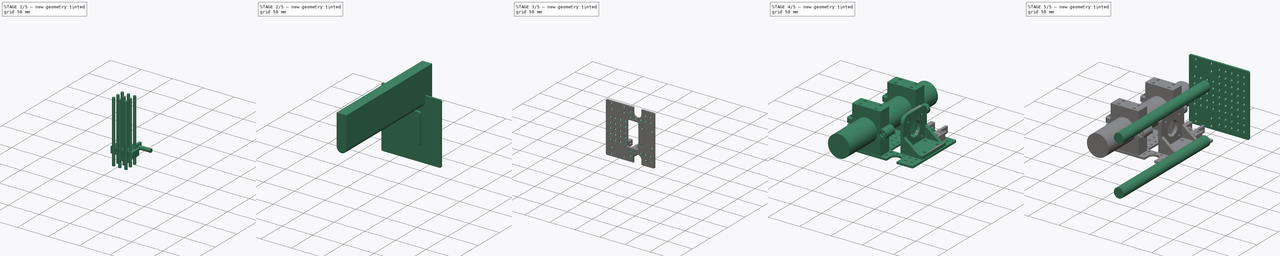
[diagram: build sequence overview — one tinted view per stage of 5, left to right]
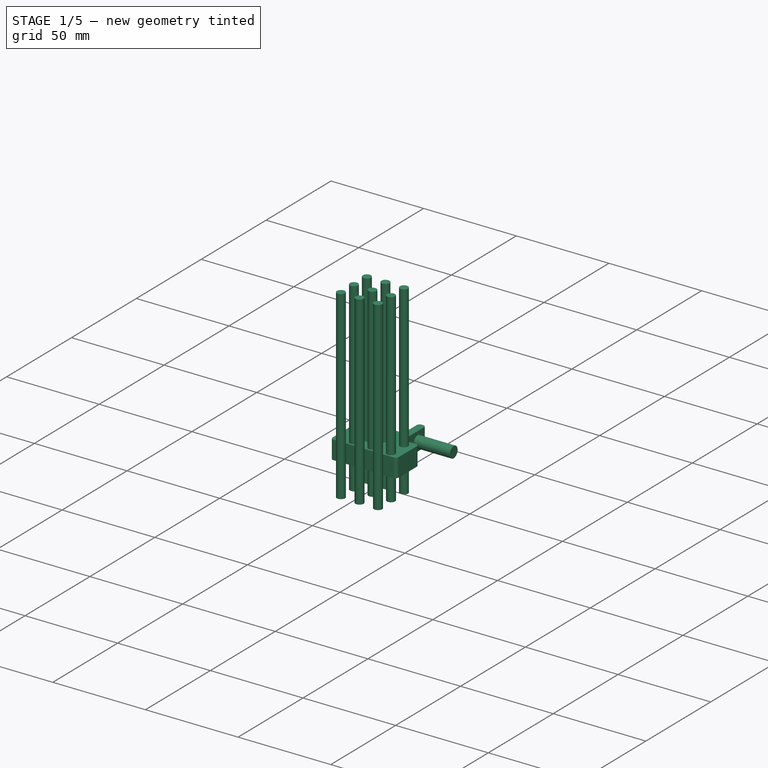
[diagram: stage 1 of 5 — iso view after this stage's code; geometry added in this stage tinted green]
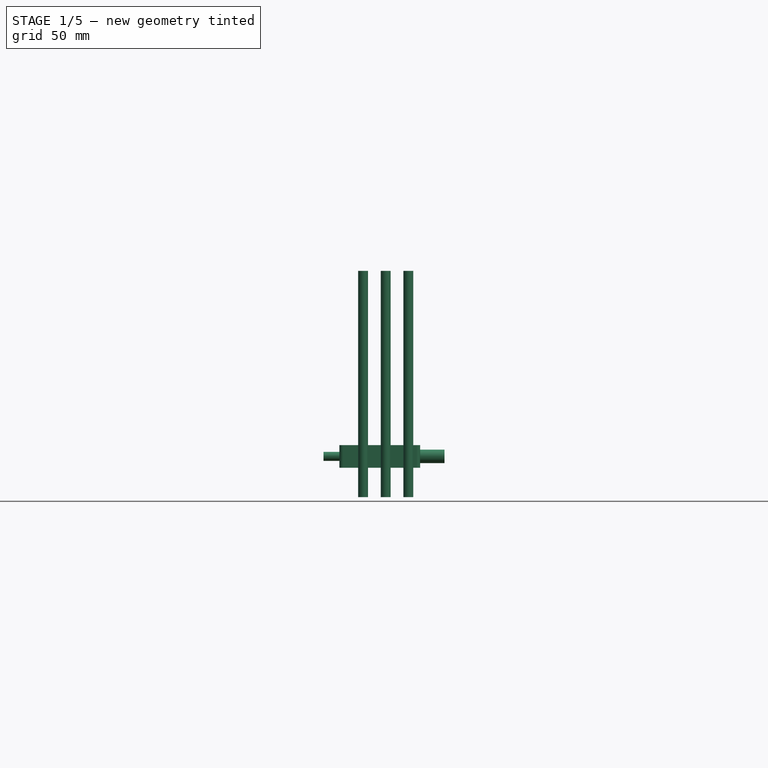
[diagram: stage 1 of 5 — front view after this stage's code; geometry added in this stage tinted green]
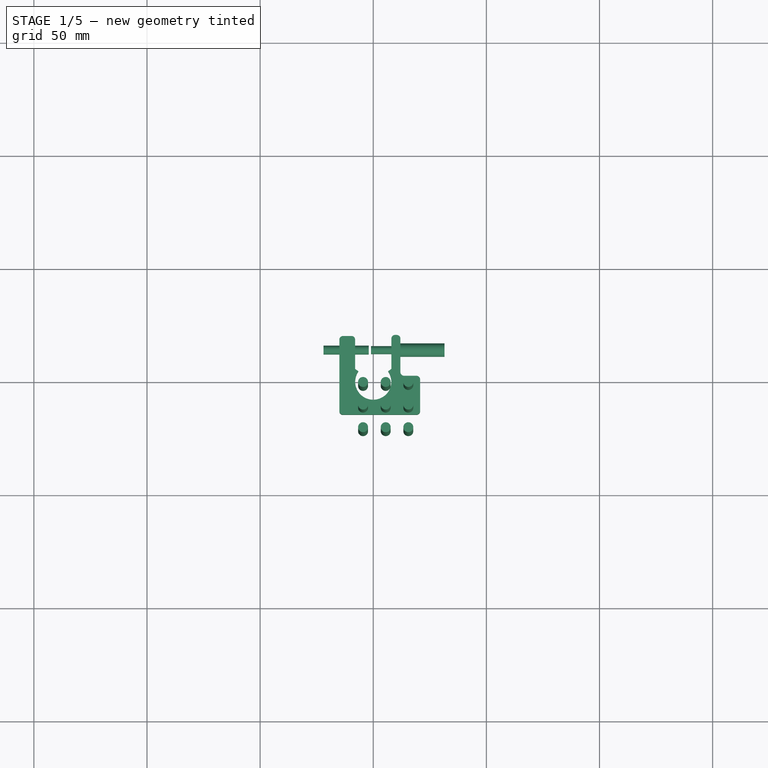
[diagram: stage 1 of 5 — top view after this stage's code; geometry added in this stage tinted green]
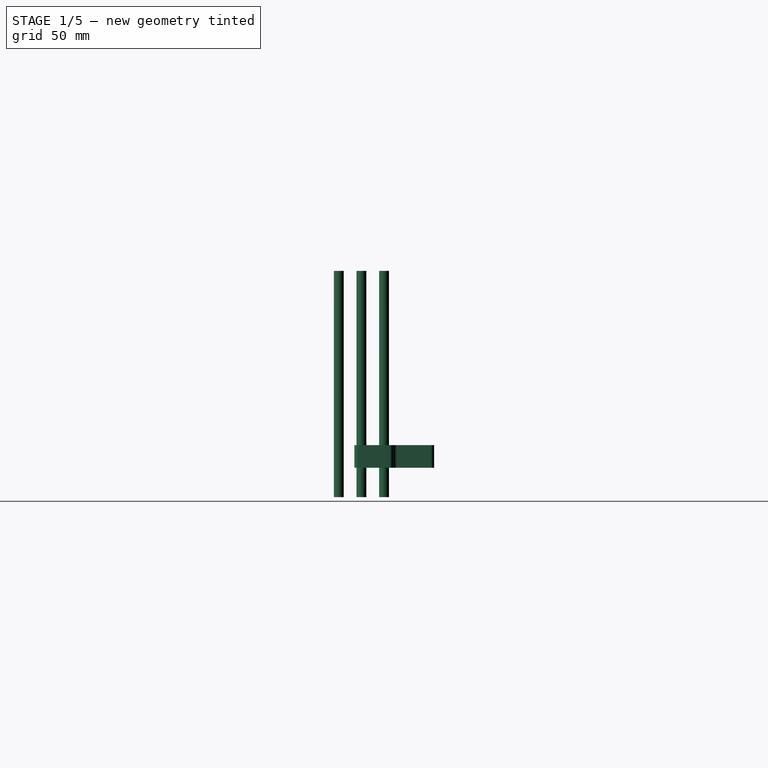
[diagram: stage 1 of 5 — right view after this stage's code; geometry added in this stage tinted green]
FCSTD DOCUMENT  (FreeCAD 0.19R)
Label: belt_connector
License: All rights reserved
LicenseURL: http://en.wikipedia.org/wiki/All_rights_reserved
objects: Part::Cylinder×16, Part::FeaturePython×8, Part::Cut×8, Part::MultiFuse×6, Part::Feature×5, App::Part×5, Part::Box×4, Part::Compound×3, Sketcher::SketchObject×3, Part::Fillet×3, Part::Extrusion×2, Spreadsheet::Sheet×1, Part::Mirroring×1, PartDesign::Pad×1, PartDesign::Body×1
note: 54 computed .brp shape members not serialized (recipe doc carries the construction recipe); baked Part::Feature solids carry a one-line shape summary decoded from their .brp

FEATURE [Sketcher::SketchObject] Sketch002
  FullyConstrained = false
  MapMode = 5
  Support = -> [XY_Plane005]
  expr: Constraints[10] = <<p>>.shaft_16mm_r
  sketch-geometry (18):
    g0: LineSegment StartX=19.0911 StartY=-14.6 StartZ=0 EndX=-13.3722 EndY=-14.6 EndZ=0
    g1: LineSegment StartX=20.7189 StartY=-12.9722 StartZ=0 EndX=20.7189 EndY=0.972183 EndZ=0
    g2: LineSegment StartX=19.0911 StartY=2.6 StartZ=0 EndX=13.6278 EndY=2.6 EndZ=0
    g3: LineSegment StartX=12 StartY=4.22782 StartZ=0 EndX=12 EndY=19.0179 EndZ=0
    g4: LineSegment StartX=10.3722 StartY=20.6457 StartZ=0 EndX=9.62782 EndY=20.6457 EndZ=0
    g5: LineSegment StartX=8 StartY=19.0179 StartZ=0 EndX=8 EndY=-3.6e-15 EndZ=0
    g6: LineSegment StartX=-8 StartY=-2.6e-15 StartZ=0 EndX=-8 EndY=18.5447 EndZ=0
    g7: LineSegment StartX=-9.62782 StartY=20.1725 StartZ=0 EndX=-13.3722 EndY=20.1725 EndZ=0
    g8: LineSegment StartX=-15 StartY=18.5447 StartZ=0 EndX=-15 EndY=-12.9722 EndZ=0
    g9: ArcOfCircle CenterX=0 CenterY=0 CenterZ=0 NormalX=0 NormalY=0 NormalZ=1 AngleXU=0 Radius=8 StartAngle=3.14159 EndAngle=6.28319
    g10: ArcOfCircle CenterX=10.3722 CenterY=19.0179 CenterZ=0 NormalX=0 NormalY=0 NormalZ=1 AngleXU=0 Radius=1.62782 StartAngle=-9e-16 EndAngle=1.5708
    g11: ArcOfCircle CenterX=9.62782 CenterY=19.0179 CenterZ=0 NormalX=0 NormalY=0 NormalZ=1 AngleXU=0 Radius=1.62782 StartAngle=1.5708 EndAngle=3.14159
    g12: ArcOfCircle CenterX=-9.62782 CenterY=18.5447 CenterZ=0 NormalX=0 NormalY=0 NormalZ=1 AngleXU=0 Radius=1.62782 StartAngle=1.1e-15 EndAngle=1.5708
    g13: ArcOfCircle CenterX=-13.3722 CenterY=18.5447 CenterZ=0 NormalX=0 NormalY=0 NormalZ=1 AngleXU=0 Radius=1.62782 StartAngle=1.5708 EndAngle=3.14159
    g14: ArcOfCircle CenterX=-13.3722 CenterY=-12.9722 CenterZ=0 NormalX=0 NormalY=0 NormalZ=1 AngleXU=0 Radius=1.62782 StartAngle=3.14159 EndAngle=4.71239
    g15: ArcOfCircle CenterX=19.0911 CenterY=-12.9722 CenterZ=0 NormalX=0 NormalY=0 NormalZ=1 AngleXU=0 Radius=1.62782 StartAngle=4.71239 EndAngle=6.28319
    g16: ArcOfCircle CenterX=19.0911 CenterY=0.972183 CenterZ=0 NormalX=0 NormalY=0 NormalZ=1 AngleXU=0 Radius=1.62782 StartAngle=0 EndAngle=1.5708
    g17: ArcOfCircle CenterX=13.6278 CenterY=4.22782 CenterZ=0 NormalX=0 NormalY=0 NormalZ=1 AngleXU=0 Radius=1.62782 StartAngle=3.14159 EndAngle=4.71239
  constraints (40):
    c: Horizontal(g0)
    c: Vertical(g1)
    c: Horizontal(g2)
    c: Vertical(g3)
    c: Vertical(g5)
    c: Horizontal(g7)
    c: Vertical(g8)
    c: Horizontal(g4)
    c: Tangent(g9,g6) = 1.5708
    c: Tangent(g9,g5) = 1.5708
    c: Radius(g9) = 8
    c: Coincident(g-1,g9)
    c: Tangent(g4,g10) = -1.5708
    c: Tangent(g3,g10) = -1.5708
    c: Tangent(g5,g11) = -1.5708
    c: Tangent(g4,g11) = -1.5708
    c: Tangent(g6,g12) = -1.5708
    c: Tangent(g7,g12) = -1.5708
    c: Tangent(g7,g13) = -1.5708
    c: Tangent(g8,g13) = -1.5708
    c: Tangent(g8,g14) = -1.5708
    c: Tangent(g0,g14) = 1.5708
    c: Tangent(g0,g15) = 1.5708
    c: Tangent(g1,g15) = -1.5708
    c: Tangent(g2,g16) = -1.5708
    c: Tangent(g1,g16) = -1.5708
    c: Tangent(g2,g17) = 1.5708
    c: Tangent(g3,g17) = 1.5708
    c: Equal(g13,g12)
    c: Equal(g12,g11)
    c: Equal(g11,g10)
    c: Equal(g10,g17)
    c: Equal(g17,g16)
    c: Equal(g16,g15)
    c: Equal(g15,g14)
    c: DistanceX(g5,g3) = 4
    c: DistanceY(g0,g9) = 14.6
    c: DistanceY(g0,g2) = 17.2
    c: DistanceX(g8,g6) = 7
    c: Vertical(g6)
FEATURE [PartDesign::Pad] Pad
  Direction = (1,1,1)
  Length = 10
  Length2 = 100
  Profile = -> Sketch002
  Type = 0
  expr: Length = <<p>>.shaft_attachment_size
FEATURE [PartDesign::Body] Body  label="shaft attachment body"
  Group = -> [Sketch002,Pad]
  Origin = -> Origin005
  Tip = -> Pad
FEATURE [Part::Cylinder] Cylinder011010  label="general insert hole"
  Angle = 360
  AttacherType = Attacher::AttachEngine3D
  Height = 100
  Radius = 2.2
  expr: Radius = <<p>>.insert_hole_r
FEATURE [Part::FeaturePython] Array008  label="general insert hole array"  # Draft array (typed FeaturePython)
  Angle = 360
  ArrayType = 0
  Axis = (0,0,1)
  Base = -> Cylinder011010
  Center = (0,0,0)
  Count = 9
  ExpandArray = false
  Fuse = false
  IntervalAxis = (0,0,0)
  IntervalX = (10,0,0)
  IntervalY = (0,10,0)
  IntervalZ = (0,0,10)
  NumberCircles = 3
  NumberPolar = 5
  NumberX = 3
  NumberY = 3
  NumberZ = 1
  Placement = pos=(-4.5,-21.5,-13) rot=(0,0,1;0rad)
  PlacementList = 9 placements: [(0,0,0),(0,10,0),(0,20,0),(10,0,0),(10,10,0),(10,20,0),(20,0,0),(20,10,0),(20,20,0)]
  RadialDistance = 50
  ScaleList = (9) [(1,1,1),(1,1,1),(1,1,1),(1,1,1),(1,1,1),(1,1,1),(1,1,1),(1,1,1),(1,1,1)]
  Symmetry = 1
  TangentialDistance = 25
FEATURE [Part::Cylinder] Cylinder011011  label="insert hole"
  Angle = 360
  AttacherType = Attacher::AttachEngine3D
  Height = 20
  Placement = pos=(-22,14,5) rot=(0,1,0;1.5708rad)
  Radius = 2
  expr: .Placement.Base.z = <<p>>.shaft_attachment_size / 2
FEATURE [Part::Cylinder] Cylinder011012  label="bolt hole001"
  Angle = 360
  AttacherType = Attacher::AttachEngine3D
  Height = 20
  Placement = pos=(-1,14,5) rot=(0,1,0;1.5708rad)
  Radius = 1.8
  expr: Radius = <<p>>.bolt_hole_r
  expr: .Placement.Base.z = <<p>>.shaft_attachment_size / 2
FEATURE [Part::Cylinder] Cylinder011013  label="bolt head hole"
  Angle = 360
  AttacherType = Attacher::AttachEngine3D
  Height = 20
  Placement = pos=(11.5,14,5) rot=(0,1,0;1.5708rad)
  Radius = 3
  expr: .Placement.Base.z = <<p>>.shaft_attachment_size / 2
  expr: Radius = <<p>>.bolt_head_r
FEATURE [Part::Cylinder] Cylinder011014  label="Cylinder"
  Angle = 360
  AttacherType = Attacher::AttachEngine3D
  Height = 10
  Radius = 8
  expr: Height = <<p>>.shaft_attachment_size
  expr: Radius = <<p>>.shaft_16mm_r
FEATURE [Part::Cylinder] Cylinder011015
  Angle = 250
  AttacherType = Attacher::AttachEngine3D
  Height = 10
  Placement = pos=(0,0,0) rot=(0,0,1;2.53073rad)
  Radius = 11
  expr: Radius = <<p>>.shaft_16mm_r + 3mm
  expr: Height = <<p>>.shaft_attachment_size
FEATURE [Part::Cut] Cut023015009010
  Base = -> Cylinder011015
  Tool = -> Cylinder011014
FEATURE [Part::MultiFuse] Fusion005  label="shaft attachment fusion"
  Shapes = -> [Body,Cut023015009010]
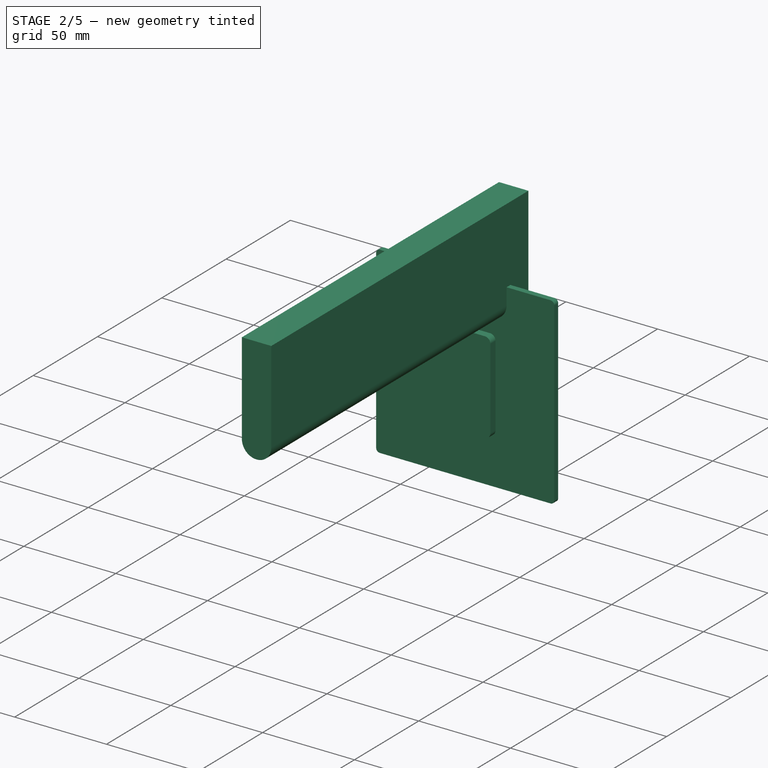
[diagram: stage 2 of 5 — iso view after this stage's code; geometry added in this stage tinted green]
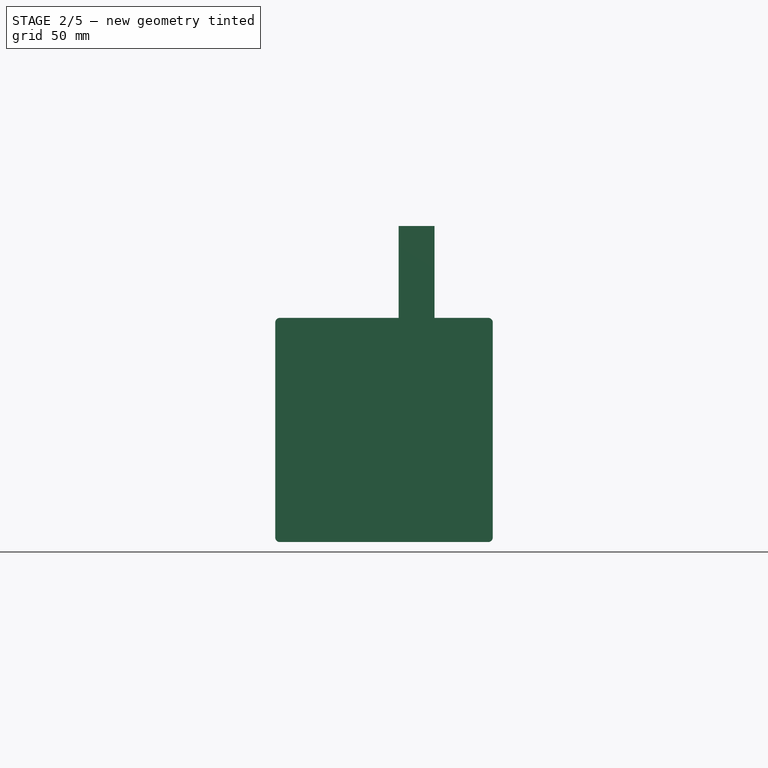
[diagram: stage 2 of 5 — front view after this stage's code; geometry added in this stage tinted green]
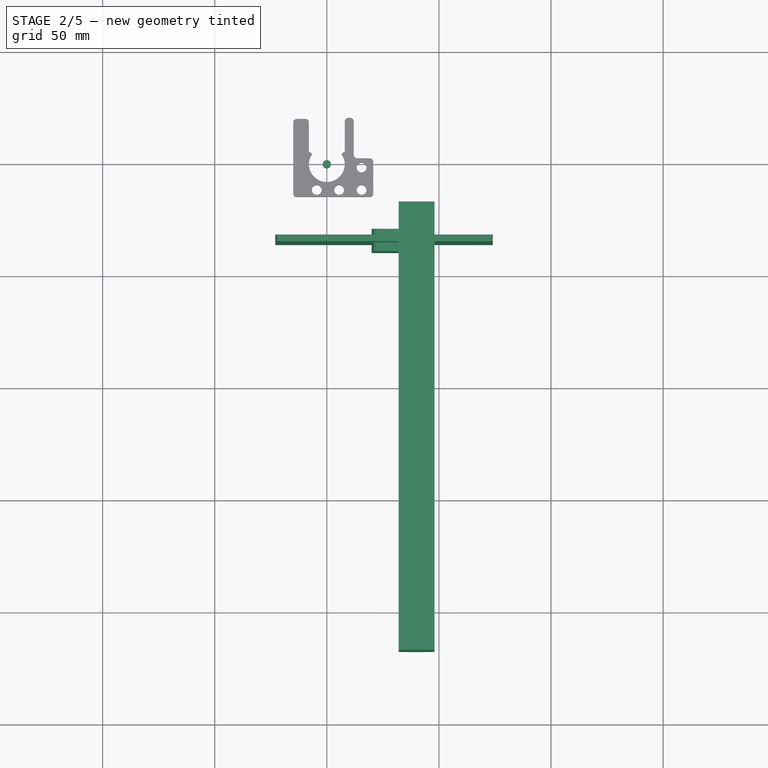
[diagram: stage 2 of 5 — top view after this stage's code; geometry added in this stage tinted green]
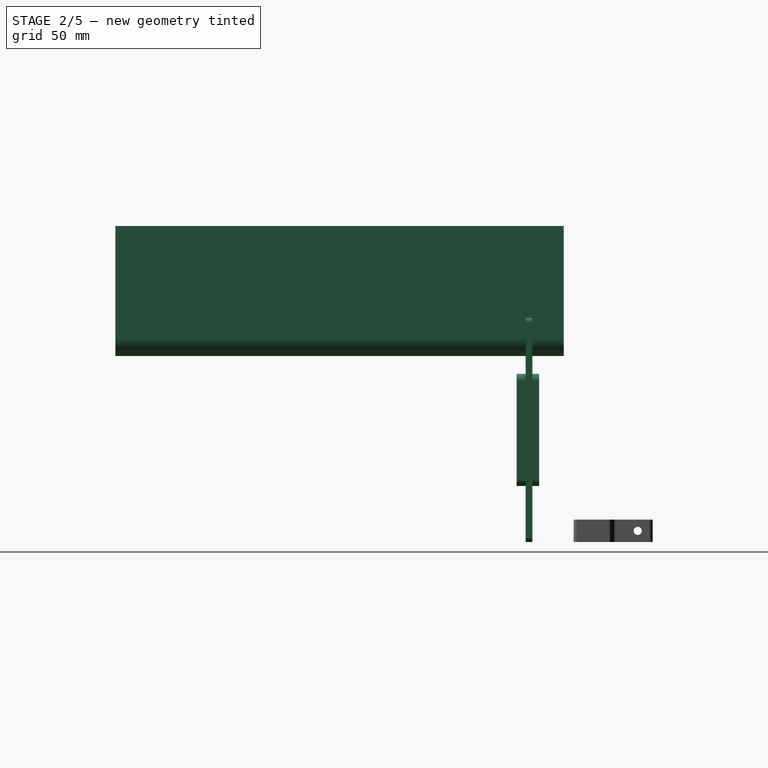
[diagram: stage 2 of 5 — right view after this stage's code; geometry added in this stage tinted green]
FEATURE [Part::Feature] Compound002  label="NEMA_17_with_connector_mockup"
  Placement = pos=(84,-6,50) rot=(0,-1,0;1.5708rad)
  shape: bbox 62 x 42.3 x 48.15 mm, 1151 faces, 10 solids (baked)
FEATURE [Spreadsheet::Sheet] Spreadsheet  label="p"
  cells = A1=stepper_shaft_space_size; B1(stepper_shaft_space_size)==25mm; A2=attachment_dist; B2(attachment_dist)==80mm; A3=attachment_size; B3(attachment_size)==20mm; A4=attachment_height; B4(attachment_height)==45mm; A5=bottom_axle_dist; B5(bottom_axle_dist)==47mm; A6=plate_height; B6(plate_height)==attachment_height + bottom_axle_dist + 5mm; A7=plate_length; B7(plate_length)==attachment_dist + attachment_size; A8=bolt_head_r; B8(bolt_head_r)==3mm; A9=bolt_hole_r; B9(bolt_hole_r)==1.8mm; A10=insert_hole_interval_x; B10(insert_hole_interval_x)==25mm; A11=insert_hole_interval_y; B11(insert_hole_interval_y)==11mm; A12=shaft_16mm_r; B12(shaft_16mm_r)==8mm; A13=insert_hole_r; B13(insert_hole_r)==2.2mm; A14=shaft_attachment_size; B14(shaft_attachment_size)==10mm
FEATURE [Part::Box] Box  label="side plate"
  AttacherType = Attacher::AttachEngine3D
  Height = 100
  Length = 97
  Placement = pos=(-23,-36,0) rot=(0,0,1;0rad)
  Width = 3
  expr: Length = <<p>>.plate_height
  expr: Height = <<p>>.plate_length
FEATURE [Part::Cylinder] Cylinder  label="shaft 16mm"
  Angle = 360
  AttacherType = Attacher::AttachEngine3D
  Height = 200
  Placement = pos=(0,0,0) rot=(1,0,0;1.5708rad)
  Radius = 8
  expr: Radius = <<p>>.shaft_16mm_r
FEATURE [Part::Feature] Cut023015009006  label="stepper mount"
  Placement = pos=(38,-6,50) rot=(0,1,0;1.5708rad)
  shape: bbox 35 x 53 x 53 mm, 32 faces (baked)
  expr: .Placement.Base.z = <<p>>.attachment_dist / 2 + <<p>>.attachment_size / 2
FEATURE [Part::Cylinder] Cylinder011003  label="stepper mount hole"
  Angle = 360
  AttacherType = Attacher::AttachEngine3D
  Height = 10
  Radius = 1.8
  expr: Radius = <<p>>.bolt_hole_r
FEATURE [Part::Fillet] Fillet  label="side plate fillet"
  Base = -> Box
  Edges = 4 edges r=2: [Edge2,Edge4,Edge6,Edge8]
FEATURE [Part::Box] Box002  label="belt hole"
  AttacherType = Attacher::AttachEngine3D
  Height = 50
  Length = 22
  Placement = pos=(20,-40,25) rot=(0,0,1;0rad)
  Width = 10
  expr: .Placement.Base.z = (<<p>>.plate_length - Height) / 2
FEATURE [Part::Fillet] Fillet002  label="belt hole fillet"
  Base = -> Box002
  Edges = 4 edges r=3: [Edge2,Edge4,Edge6,Edge8]
FEATURE [Part::Box] Box003  label="shaft extension cube"
  AttacherType = Attacher::AttachEngine3D
  Height = 50
  Length = 16
  Placement = pos=(-8,-200,-50) rot=(0,0,1;0rad)
  Width = 200
  expr: .Placement.Base.z = -Height
  expr: .Placement.Base.x = -Length / 2
  expr: Length = <<p>>.shaft_16mm_r * 2
  expr: .Placement.Base.y = -Width
  expr: Width = <<shaft 16mm>>.Height
FEATURE [Part::MultiFuse] Fusion002  label="shaft 16mm hole"
  Placement = pos=(40,-19,9) rot=(0,0,1;0rad)
  Shapes = -> [Cylinder,Box003]
FEATURE [Part::Mirroring] Part__Mirroring  label="shaft 16mm hole (Mirror #1)"
  Base = (0,0,50)
  Normal = (0,0,1)
  Source = -> Fusion002
FEATURE [Part::MultiFuse] Fusion004  label="shaft attachment holde fusion"
  Shapes = -> [Cylinder011011,Cylinder011012,Cylinder011013,Array008]
FEATURE [Part::Cut] Cut023015009009  label="shaft attachment  cut"
  Base = -> Fusion005
  Tool = -> Fusion004
FEATURE [App::Part] Part004  label="shaft attachment part"
  Group = -> [Cut023015009009]
  Origin = -> Origin004
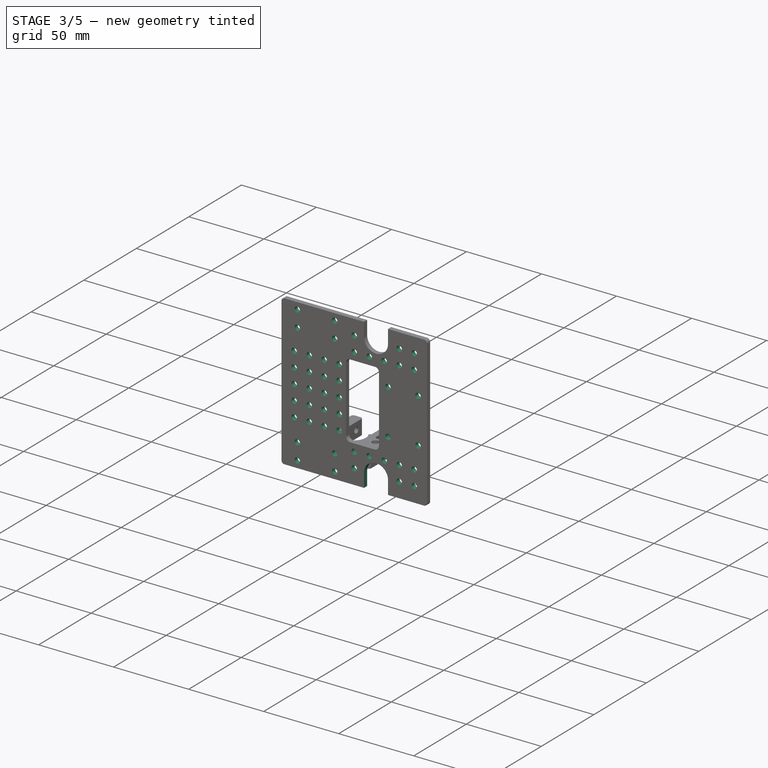
[diagram: stage 3 of 5 — iso view after this stage's code; geometry added in this stage tinted green]
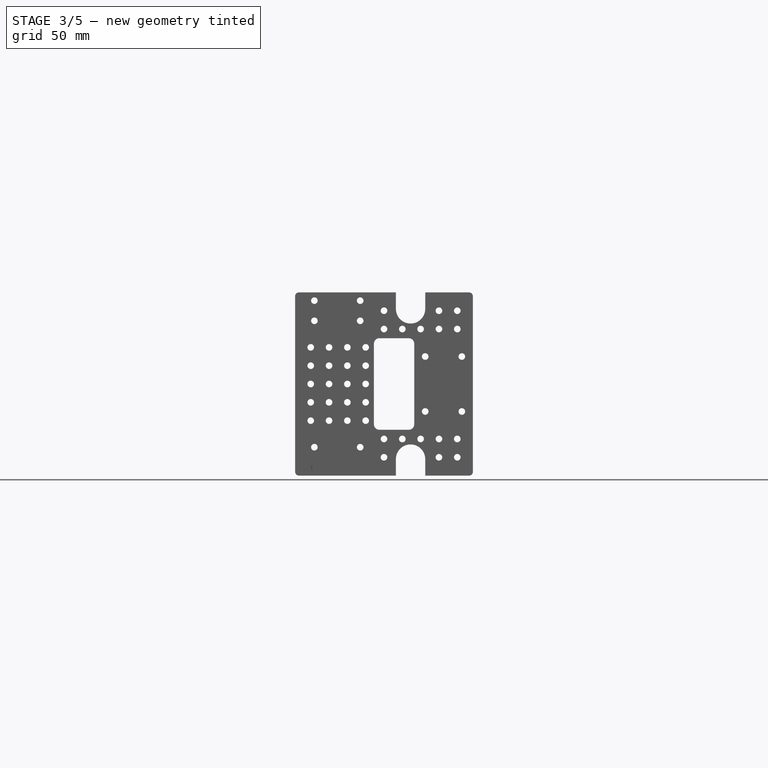
[diagram: stage 3 of 5 — front view after this stage's code; geometry added in this stage tinted green]
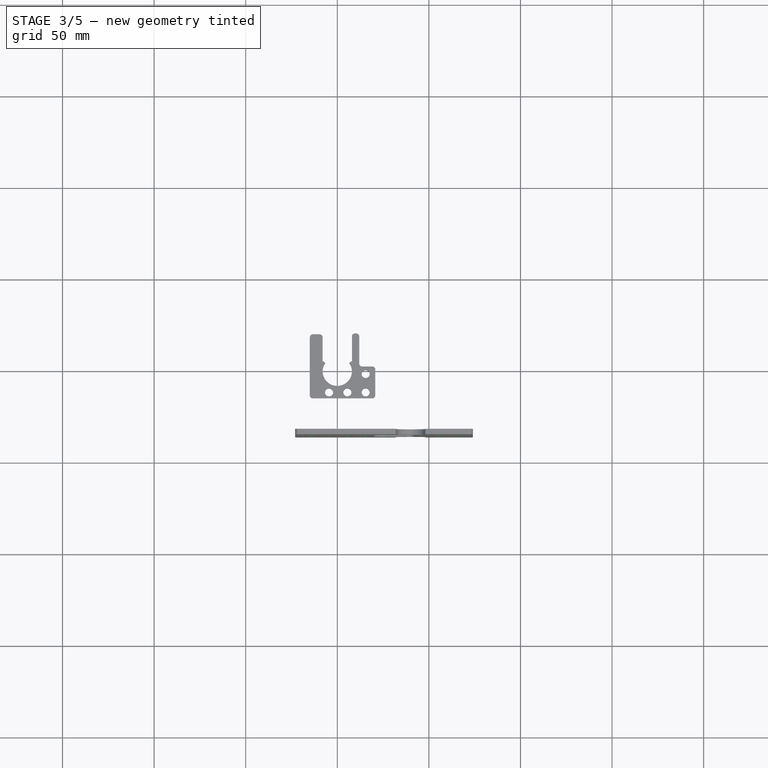
[diagram: stage 3 of 5 — top view after this stage's code; geometry added in this stage tinted green]
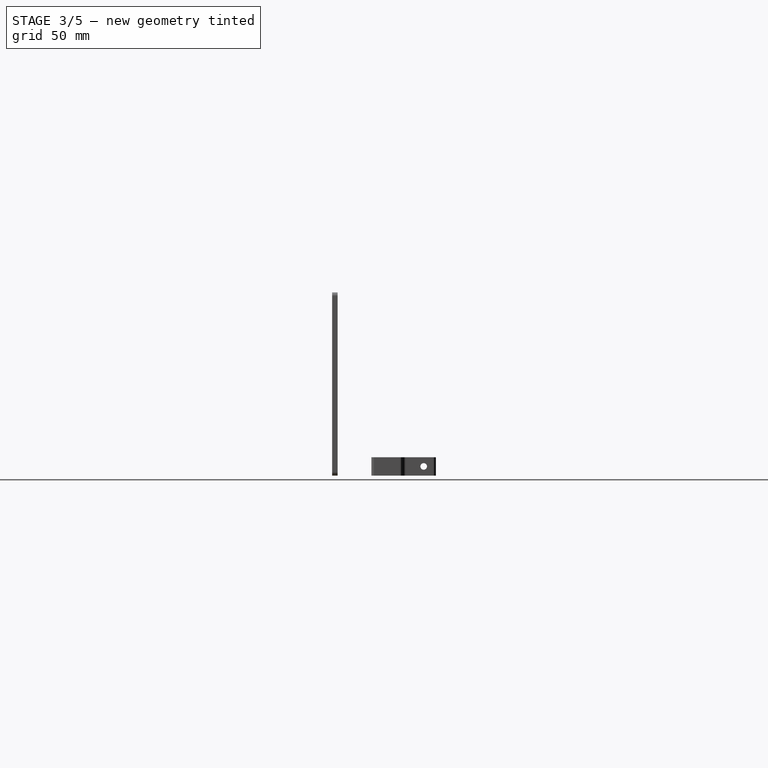
[diagram: stage 3 of 5 — right view after this stage's code; geometry added in this stage tinted green]
FEATURE [Part::Cylinder] Cylinder038  label="bolt hole"
  Angle = 360
  AttacherType = Attacher::AttachEngine3D
  Height = 100
  Placement = pos=(0,0,-50) rot=(0,0,1;0rad)
  Radius = 1.8
  expr: .Placement.Base.z = -Height / 2
  expr: Radius = <<p>>.bolt_hole_r
FEATURE [Part::FeaturePython] Array001  label="bolt hole array"  # Draft array (typed FeaturePython)
  Angle = 360
  ArrayType = 0
  Axis = (0,0,1)
  Base = -> Cylinder038
  Center = (0,0,0)
  Count = 4
  ExpandArray = false
  Fuse = false
  IntervalAxis = (0,0,0)
  IntervalX = (25,0,0)
  IntervalY = (0,11,0)
  IntervalZ = (0,0,100)
  NumberCircles = 3
  NumberPolar = 5
  NumberX = 2
  NumberY = 2
  NumberZ = 1
  Placement = pos=(-12.5,0,4.5) rot=(1,0,0;1.5708rad)
  PlacementList = 4 placements: [(0,0,-50),(0,11,-50),(25,0,-50),(25,11,-50)]
  RadialDistance = 50
  ScaleList = (4) [(1,1,1),(1,1,1),(1,1,1),(1,1,1)]
  Symmetry = 1
  TangentialDistance = 25
  expr: .Placement.Base.z = (<<p>>.attachment_size - .IntervalY.y) / 2
  expr: .IntervalX.x = <<p>>.insert_hole_interval_x
  expr: .IntervalY.y = <<p>>.insert_hole_interval_y
  expr: .Placement.Base.x = -.IntervalX.x / 2
FEATURE [Part::FeaturePython] Array002  label="bolt hole array pair"  # Draft array (typed FeaturePython)
  Angle = 360
  ArrayType = 0
  Axis = (0,0,1)
  Base = -> Array001
  Center = (0,0,0)
  Count = 2
  ExpandArray = false
  Fuse = false
  IntervalAxis = (0,0,0)
  IntervalX = (100,0,0)
  IntervalY = (0,100,0)
  IntervalZ = (0,0,80)
  NumberCircles = 3
  NumberPolar = 5
  NumberX = 1
  NumberY = 1
  NumberZ = 2
  PlacementList = 2 placements: [(-12.5,0,4.5),(-12.5,0,84.5)]
  RadialDistance = 50
  ScaleList = (2) [(1,1,1),(1,1,1)]
  Symmetry = 1
  TangentialDistance = 25
  expr: .IntervalZ.z = <<p>>.attachment_dist
FEATURE [Part::Cylinder] Cylinder011002  label="general bolt hole"
  Angle = 360
  AttacherType = Attacher::AttachEngine3D
  Height = 100
  Placement = pos=(0,50,0) rot=(1,0,0;1.5708rad)
  Radius = 1.8
  expr: .Placement.Base.y = Height / 2
  expr: Radius = <<p>>.bolt_hole_r
FEATURE [Part::FeaturePython] Array004  label="general bolt hole array"  # Draft array (typed FeaturePython)
  Angle = 360
  ArrayType = 0
  Axis = (0,0,1)
  Base = -> Cylinder011002
  Center = (0,0,0)
  Count = 81
  ExpandArray = false
  Fuse = false
  IntervalAxis = (0,0,0)
  IntervalX = (10,0,0)
  IntervalY = (0,10,0)
  IntervalZ = (0,0,10)
  NumberCircles = 3
  NumberPolar = 5
  NumberX = 9
  NumberY = 1
  NumberZ = 9
  Placement = pos=(-14.5,0,10) rot=(0,0,1;0rad)
  PlacementList = 81 placements: [(0,50,0),(0,50,10),(0,50,20),(0,50,30),(0,50,40),(0,50,50),(0,50,60),(0,50,70),(0,50,80),(10,50,0),(10,50,10),(10,50,20),(10,50,30),(10,50,40),(10,50,50),(10,50,60),(10,50,70),(10,50,80),(20,50,0),(20,50,10),(20,50,20),(20,50,30),(20,50,40),(20,50,50),(20,50,60),(20,50,70),(20,50,80),(30,50,0),(30,50,10),(30,50,20),(30,50,30),(30,50,40),(30,50,50),(30,50,60),(30,50,70),(30,50,80),(40,50,0),+44 more]
  RadialDistance = 50
  ScaleList = (81) [(1,1,1),(1,1,1),(1,1,1),(1,1,1),(1,1,1),(1,1,1),(1,1,1),(1,1,1),(1,1,1),(1,1,1),(1,1,1),(1,1,1),(1,1,1),(1,1,1),(1,1,1),(1,1,1),(1,1,1),(1,1,1),+63 more]
  Symmetry = 1
  TangentialDistance = 25
  expr: .Placement.Base.x = (<<p>>.plate_height - .IntervalX.x * (NumberX - 1)) / 2 + <<side plate>>.Placement.Base.x
  expr: .Placement.Base.z = (<<p>>.plate_length - .IntervalZ.z * (NumberZ - 1)) / 2 + <<side plate>>.Placement.Base.z
  expr: NumberX = round(<<p>>.plate_height / .IntervalX.x) - 1
  expr: NumberZ = round(<<p>>.plate_length / .IntervalZ.z) - 1
FEATURE [Sketcher::SketchObject] Sketch
  FullyConstrained = false
  Placement = pos=(0,0,0) rot=(1,0,0;1.5708rad)
  sketch-geometry (12):
    g0: LineSegment StartX=-22.854 StartY=23.5436 StartZ=0 EndX=19.2636 EndY=23.5436 EndZ=0
    g1: LineSegment StartX=19.2636 StartY=23.5436 StartZ=0 EndX=19.2636 EndY=-0.19514 EndZ=0
    g2: LineSegment StartX=19.2636 StartY=-0.19514 StartZ=0 EndX=-22.854 EndY=-0.19514 EndZ=0
    g3: LineSegment StartX=-22.854 StartY=-0.19514 StartZ=0 EndX=-22.854 EndY=23.5436 EndZ=0
    g4: LineSegment StartX=-21.2207 StartY=102.675 StartZ=0 EndX=19.2504 EndY=102.675 EndZ=0
    g5: LineSegment StartX=19.2504 StartY=102.675 StartZ=0 EndX=19.2504 EndY=75.6273 EndZ=0
    g6: LineSegment StartX=19.2504 StartY=75.6273 StartZ=0 EndX=-21.2207 EndY=75.6273 EndZ=0
    g7: LineSegment StartX=-21.2207 StartY=75.6273 StartZ=0 EndX=-21.2207 EndY=102.675 EndZ=0
    g8: LineSegment StartX=42.3267 StartY=72.4011 StartZ=0 EndX=71.7078 EndY=72.4011 EndZ=0
    g9: LineSegment StartX=71.7078 StartY=72.4011 StartZ=0 EndX=71.7078 EndY=26.2045 EndZ=0
    g10: LineSegment StartX=71.7078 StartY=26.2045 StartZ=0 EndX=42.3267 EndY=26.2045 EndZ=0
    g11: LineSegment StartX=42.3267 StartY=26.2045 StartZ=0 EndX=42.3267 EndY=72.4011 EndZ=0
  constraints (24):
    c: Coincident(g0,g1)
    c: Coincident(g1,g2)
    c: Coincident(g2,g3)
    c: Coincident(g3,g0)
    c: Horizontal(g0)
    c: Horizontal(g2)
    c: Vertical(g1)
    c: Vertical(g3)
    c: Coincident(g4,g5)
    c: Coincident(g5,g6)
    c: Coincident(g6,g7)
    c: Coincident(g7,g4)
    c: Horizontal(g4)
    c: Horizontal(g6)
    c: Vertical(g5)
    c: Vertical(g7)
    c: Coincident(g8,g9)
    c: Coincident(g9,g10)
    c: Coincident(g10,g11)
    c: Coincident(g11,g8)
    c: Horizontal(g8)
    c: Horizontal(g10)
    c: Vertical(g9)
    c: Vertical(g11)
FEATURE [Part::Extrusion] Extrude  label="general holes extrude"
  Base = -> Sketch
  Dir = (0,-1,2e-16)
  DirMode = 2
  FaceMakerClass = Part::FaceMakerBullseye
  LengthFwd = 100
  LengthRev = 0
  Solid = true
  Symmetric = true
FEATURE [Part::Cut] Cut  label="general bolt hole set"
  Base = -> Array004
  Tool = -> Extrude
FEATURE [Part::FeaturePython] Array005  label="stepper mount hole array"  # Draft array (typed FeaturePython)
  Angle = 360
  ArrayType = 0
  Axis = (0,0,1)
  Base = -> Cylinder011003
  Center = (0,0,0)
  Count = 4
  ExpandArray = false
  Fuse = false
  IntervalAxis = (0,0,0)
  IntervalX = (30,0,0)
  IntervalY = (0,20,0)
  IntervalZ = (0,0,100)
  NumberCircles = 3
  NumberPolar = 5
  NumberX = 2
  NumberY = 2
  NumberZ = 1
  Placement = pos=(48,-31,65) rot=(0.57735,0.57735,-0.57735;2.0944rad)
  PlacementList = 4 placements: [(0,0,0),(0,20,0),(30,0,0),(30,20,0)]
  RadialDistance = 50
  ScaleList = (4) [(1,1,1),(1,1,1),(1,1,1),(1,1,1)]
  Symmetry = 1
  TangentialDistance = 25
FEATURE [Part::MultiFuse] Fusion  label="hole fusion"
  Shapes = -> [Cut,Array002,Array005,Fillet002,Part__Mirroring,Fusion002]
FEATURE [Part::Cut] Cut023015009002  label="side plate cut"
  Base = -> Fillet
  Tool = -> Fusion
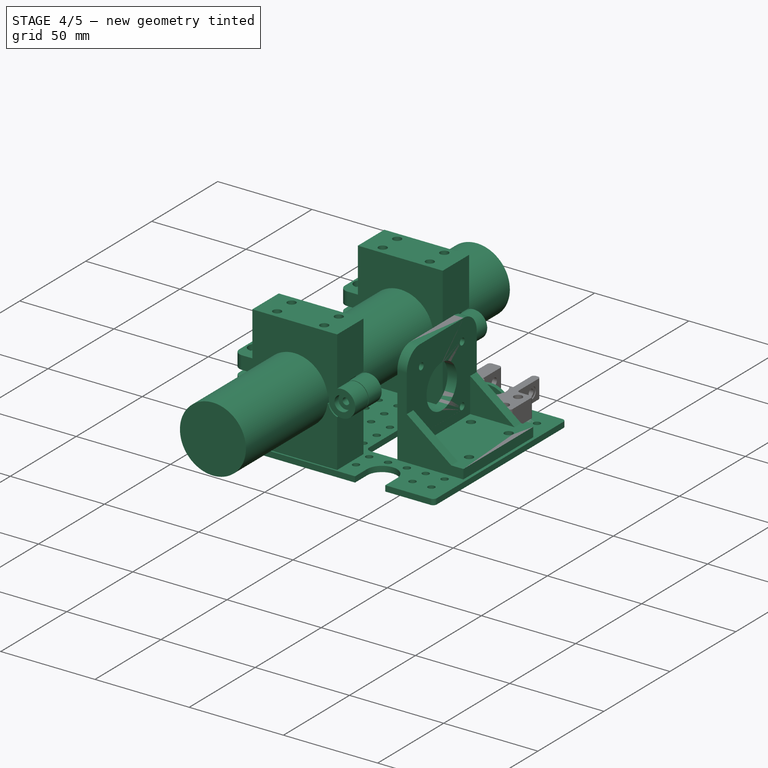
[diagram: stage 4 of 5 — iso view after this stage's code; geometry added in this stage tinted green]
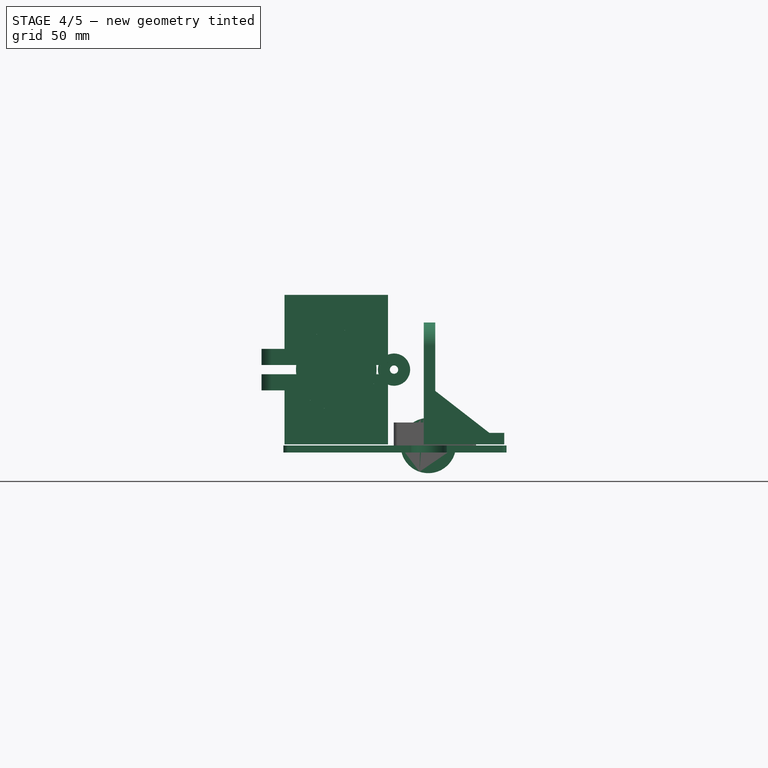
[diagram: stage 4 of 5 — front view after this stage's code; geometry added in this stage tinted green]
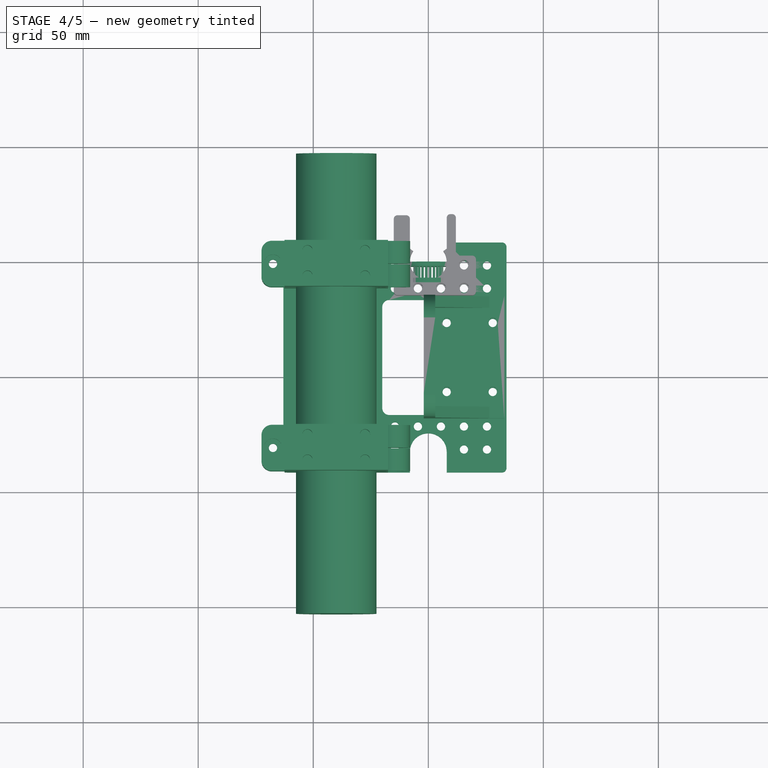
[diagram: stage 4 of 5 — top view after this stage's code; geometry added in this stage tinted green]
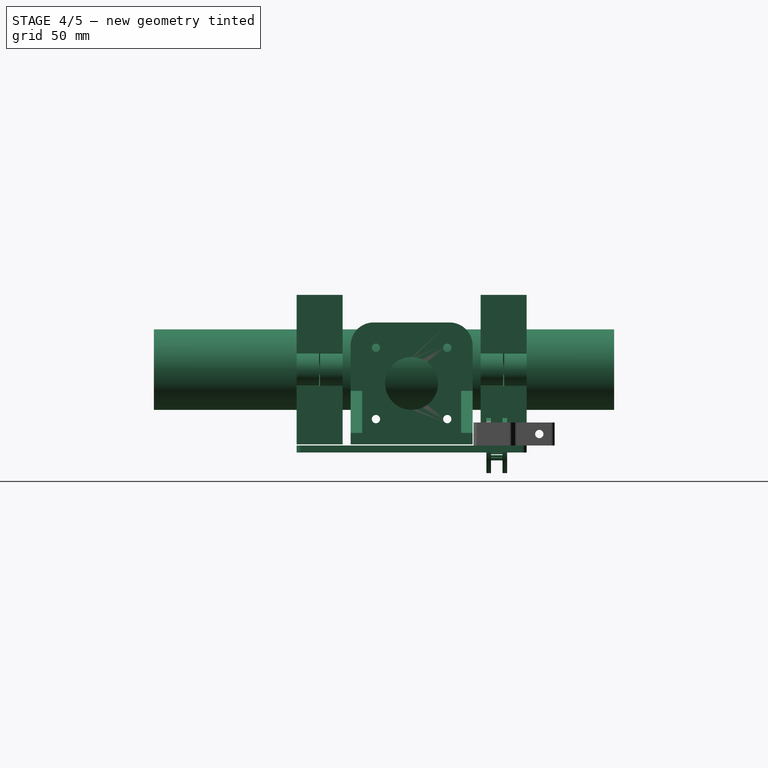
[diagram: stage 4 of 5 — right view after this stage's code; geometry added in this stage tinted green]
FEATURE [Part::Feature] Cut023015009001  label="35mm pipe attachment bolt cut002"
  shape: bbox 64.6 x 39.5 x 20 mm, 42 faces (baked)
FEATURE [Part::Feature] Cut023015006001  label="35mm pipe attachment insert cut002"
  shape: bbox 64.6 x 39.5 x 20 mm, 38 faces (baked)
FEATURE [Part::Compound] Compound  label="bring attachment compound"
  Links = -> [Cut023015009001,Cut023015006001]
FEATURE [Part::FeaturePython] Array  label="bring attachment array"  # Draft array (typed FeaturePython)
  Angle = 360
  ArrayType = 0
  Axis = (0,0,1)
  Base = -> Compound
  Center = (0,0,0)
  Count = 2
  ExpandArray = false
  Fuse = false
  IntervalAxis = (0,0,0)
  IntervalX = (100,0,0)
  IntervalY = (0,100,0)
  IntervalZ = (0,0,80)
  NumberCircles = 3
  NumberPolar = 5
  NumberX = 1
  NumberY = 1
  NumberZ = 2
  PlacementList = 2 placements: [(0,0,0),(0,0,80)]
  RadialDistance = 50
  ScaleList = (2) [(1,1,1),(1,1,1)]
  Symmetry = 1
  TangentialDistance = 25
  expr: .IntervalZ.z = <<p>>.attachment_dist
FEATURE [Part::Feature] Cylinder011001  label="35mm pipe mockup001"
  Placement = pos=(0,0,-38) rot=(0,0,1;0rad)
  shape: bbox 35 x 35 x 200 mm, 3 faces (baked)
FEATURE [Part::Compound] Compound001  label="attachment compound"
  Links = -> [Array,Cylinder011001]
FEATURE [App::Part] Part  label="shaft side plate part"
  Group = -> [Cut023015009002]
  Origin = -> Origin
FEATURE [App::Part] Part001  label="pulley side plate part"
  Group = -> [Cut023015009004]
  Origin = -> Origin001
FEATURE [Part::Cylinder] Cylinder011005  label="belt smaller cylinder"
  Angle = 360
  AttacherType = Attacher::AttachEngine3D
  Height = 7
  Placement = pos=(0,0,0) rot=(1,0,0;1.5708rad)
  Radius = 6
FEATURE [Part::Cylinder] Cylinder011006  label="belt disk"
  Angle = 360
  AttacherType = Attacher::AttachEngine3D
  Height = 2
  Placement = pos=(0,-7,0) rot=(1,0,0;1.5708rad)
  Radius = 12
  expr: .Placement.Base.y = -<<belt smaller cylinder>>.Height
FEATURE [Part::Cylinder] Cylinder011007  label="belt attach insert hole"
  Angle = 360
  AttacherType = Attacher::AttachEngine3D
  Height = 20
  Placement = pos=(0,0,0) rot=(1,0,0;1.5708rad)
  Radius = 2.2
  expr: Radius = Spreadsheet.insert_hole_r
FEATURE [Part::Cylinder] Cylinder011008  label="belt plate disk"
  Angle = 360
  AttacherType = Attacher::AttachEngine3D
  Height = 2
  Placement = pos=(0,0,0) rot=(1,0,0;1.5708rad)
  Radius = 12
FEATURE [Part::Cut] Cut023015009008  label="belt addach washer cut"
  Base = -> Cylinder011008
  Tool = -> Cylinder011007
FEATURE [App::Part] Part003  label="belt addach washer part"
  Group = -> [Cut023015009008]
  Origin = -> Origin003
  Placement = pos=(0,-2,0) rot=(0,0,1;0rad)
FEATURE [Part::Cylinder] Cylinder011009  label="belt pin"
  Angle = 360
  AttacherType = Attacher::AttachEngine3D
  Height = 7
  Placement = pos=(6,0,0) rot=(1,0,0;1.5708rad)
  Radius = 0.5
  expr: .Placement.Base.x = <<belt smaller cylinder>>.Radius
FEATURE [Part::FeaturePython] Array007  label="belt pin array"  # Draft array (typed FeaturePython)
  Angle = 360
  ArrayType = 1
  Axis = (0,1,0)
  Base = -> Cylinder011009
  Center = (0,0,0)
  Count = 22
  ExpandArray = false
  Fuse = false
  IntervalAxis = (0,0,0)
  IntervalX = (50,0,0)
  IntervalY = (0,50,0)
  IntervalZ = (0,0,50)
  NumberCircles = 3
  NumberPolar = 22
  NumberX = 2
  NumberY = 2
  NumberZ = 1
  PlacementList = 22 placements: [(6,0,0),(5.75696,0,-1.6904),(5.04752,0,-3.24384),(3.92916,0,-4.5345),(2.49249,0,-5.45779),(0.853889,0,-5.93893),(-0.853889,0,-5.93893),(-2.49249,0,-5.45779),(-3.92916,0,-4.5345),(-5.04752,0,-3.24384),(-5.75696,0,-1.6904),(-6,0,-7.34788e-16),(-5.75696,0,1.6904),(-5.04752,0,3.24384),(-3.92916,0,4.5345),(-2.49249,0,5.45779),(-0.853889,0,5.93893),(0.853889,0,5.93893),(2.49249,0,5.45779),+3 more]
  RadialDistance = 50
  ScaleList = (22) [(1,1,1),(1,1,1),(1,1,1),(1,1,1),(1,1,1),(1,1,1),(1,1,1),(1,1,1),(1,1,1),(1,1,1),(1,1,1),(1,1,1),(1,1,1),(1,1,1),(1,1,1),(1,1,1),(1,1,1),(1,1,1),+4 more]
  Symmetry = 1
  TangentialDistance = 25
FEATURE [App::Part] Part002  label="belt attach"
  Group = -> [Cut023015009007]
  Origin = -> Origin002
FEATURE [Part::Compound] Compound003  label="shaft side compound"
  Links = -> [Cut023015009006,Compound001,Cut023015009002]
  Placement = pos=(-40,8.5,33) rot=(1,0,0;1.5708rad)
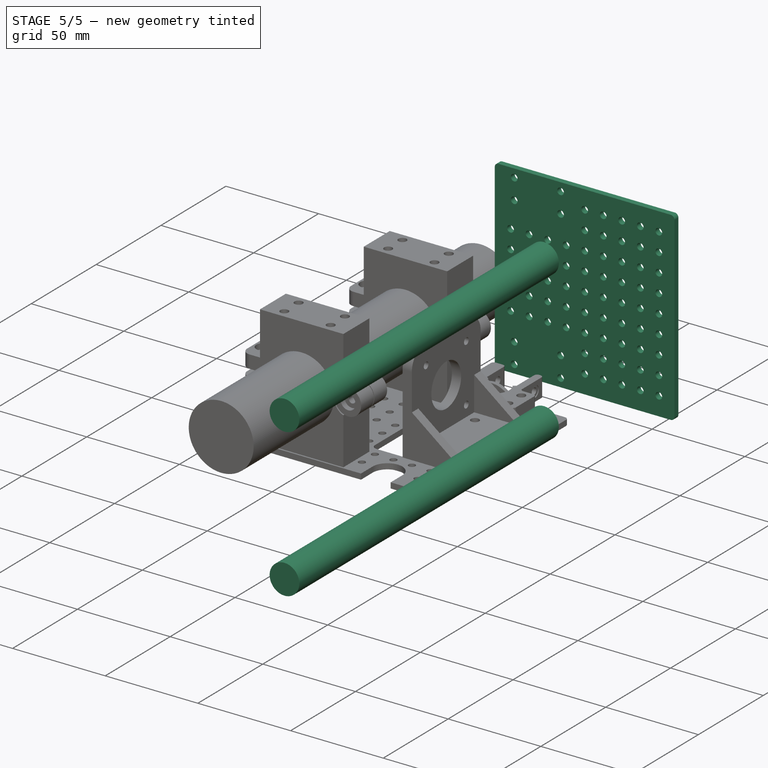
[diagram: stage 5 of 5 — iso view after this stage's code; geometry added in this stage tinted green]
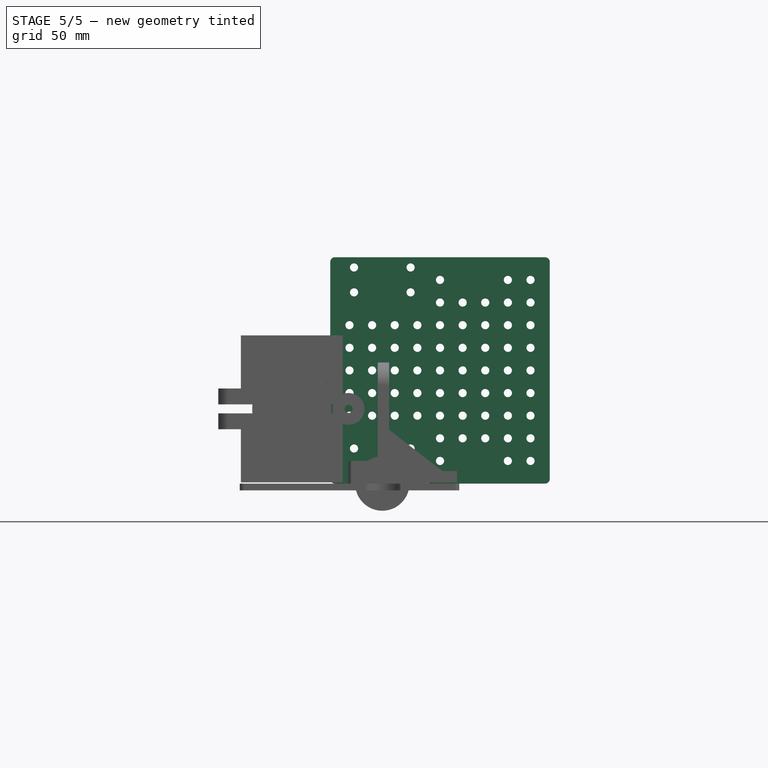
[diagram: stage 5 of 5 — front view after this stage's code; geometry added in this stage tinted green]
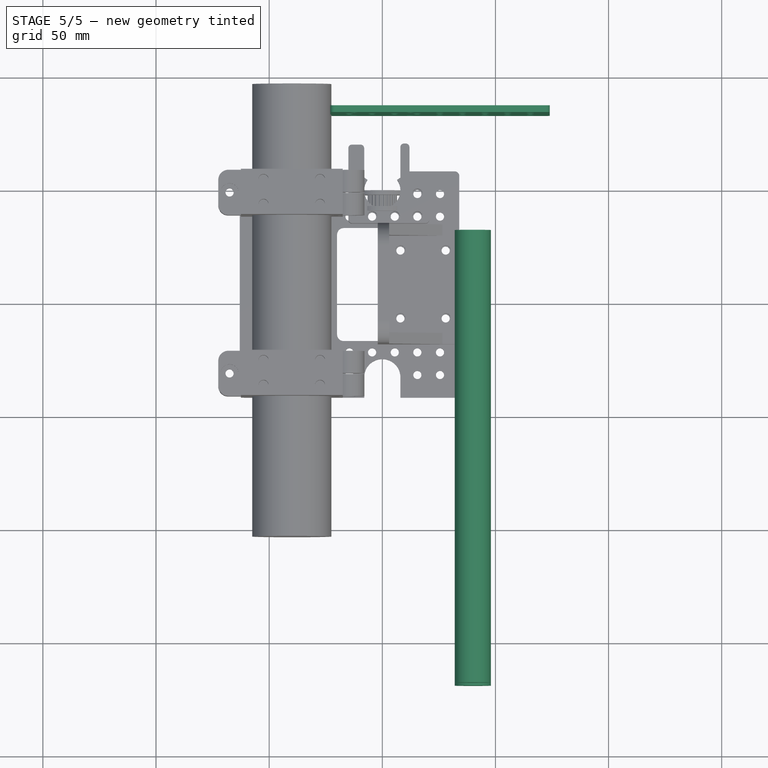
[diagram: stage 5 of 5 — top view after this stage's code; geometry added in this stage tinted green]
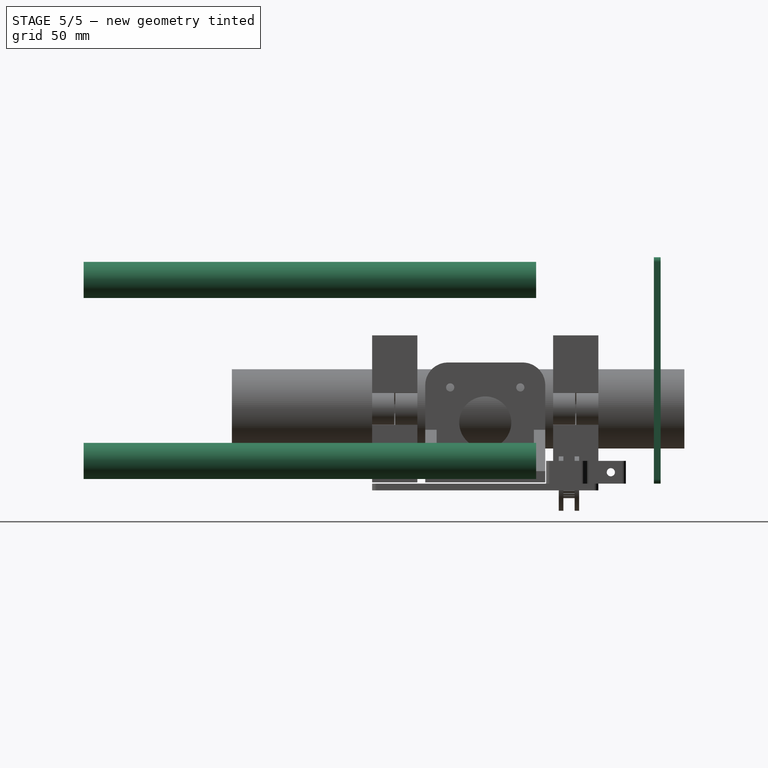
[diagram: stage 5 of 5 — right view after this stage's code; geometry added in this stage tinted green]
FEATURE [Part::Box] Box001  label="pulley side plate"
  AttacherType = Attacher::AttachEngine3D
  Height = 100
  Length = 97
  Placement = pos=(-23,33,0) rot=(0,0,1;0rad)
  Width = 3
  expr: Height = <<p>>.plate_length
  expr: Length = <<p>>.plate_height
FEATURE [Sketcher::SketchObject] Sketch001
  FullyConstrained = false
  MapMode = 3
  Placement = pos=(-14.5,0,10) rot=(1,0,0;1.5708rad)
  Support = -> [Array004]
  sketch-geometry (8):
    g0: LineSegment StartX=35.2931 StartY=89.7365 StartZ=0 EndX=-7.95691 EndY=89.7365 EndZ=0
    g1: LineSegment StartX=-7.95691 StartY=89.7365 StartZ=0 EndX=-7.95691 EndY=64.3719 EndZ=0
    g2: LineSegment StartX=-7.95691 StartY=64.3719 StartZ=0 EndX=35.2931 EndY=64.3719 EndZ=0
    g3: LineSegment StartX=35.2931 StartY=64.3719 StartZ=0 EndX=35.2931 EndY=89.7365 EndZ=0
    g4: LineSegment StartX=-9.25768 StartY=13.6426 StartZ=0 EndX=35.6183 EndY=13.6426 EndZ=0
    g5: LineSegment StartX=35.6183 StartY=13.6426 StartZ=0 EndX=35.6183 EndY=-10.0961 EndZ=0
    g6: LineSegment StartX=35.6183 StartY=-10.0961 StartZ=0 EndX=-9.25768 EndY=-10.0961 EndZ=0
    g7: LineSegment StartX=-9.25768 StartY=-10.0961 StartZ=0 EndX=-9.25768 EndY=13.6426 EndZ=0
  constraints (16):
    c: Coincident(g0,g1)
    c: Coincident(g1,g2)
    c: Coincident(g2,g3)
    c: Coincident(g3,g0)
    c: Horizontal(g0)
    c: Horizontal(g2)
    c: Vertical(g1)
    c: Vertical(g3)
    c: Coincident(g4,g5)
    c: Coincident(g5,g6)
    c: Coincident(g6,g7)
    c: Coincident(g7,g4)
    c: Horizontal(g4)
    c: Horizontal(g6)
    c: Vertical(g5)
    c: Vertical(g7)
FEATURE [Part::Extrusion] Extrude001  label="pulley side extrude"
  Base = -> Sketch001
  Dir = (0,-1,2e-16)
  DirMode = 2
  FaceMakerClass = Part::FaceMakerBullseye
  LengthFwd = 100
  LengthRev = 0
  Solid = true
  Symmetric = true
FEATURE [Part::Cut] Cut023015009003  label="pulley general bolt hole set"
  Base = -> Array004
  Tool = -> Extrude001
FEATURE [Part::MultiFuse] Fusion001  label="pulley side hole fusion"
  Shapes = -> [Cut023015009003,Array002]
FEATURE [Part::Fillet] Fillet001  label="pulley side plate fillet"
  Base = -> Box001
  Edges = 4 edges r=2: [Edge2,Edge4,Edge6,Edge8]
FEATURE [Part::Cut] Cut023015009004  label="pulley side plate cut"
  Base = -> Fillet001
  Tool = -> Fusion001
FEATURE [Part::Cylinder] Cylinder011004  label="shaft 16mm001"
  Angle = 360
  AttacherType = Attacher::AttachEngine3D
  Height = 200
  Placement = pos=(0,0,0) rot=(1,0,0;1.5708rad)
  Radius = 8
  expr: Radius = <<p>>.shaft_16mm_r
FEATURE [Part::FeaturePython] Array006  label="shaft array"  # Draft array (typed FeaturePython)
  Angle = 360
  ArrayType = 0
  Axis = (0,0,1)
  Base = -> Cylinder011004
  Center = (0,0,0)
  Count = 2
  ExpandArray = false
  Fuse = false
  IntervalAxis = (0,0,0)
  IntervalX = (100,0,0)
  IntervalY = (0,100,0)
  IntervalZ = (0,0,80)
  NumberCircles = 3
  NumberPolar = 5
  NumberX = 1
  NumberY = 1
  NumberZ = 2
  Placement = pos=(40,-19,10) rot=(0,0,1;0rad)
  PlacementList = 2 placements: [(0,0,0),(0,0,80)]
  RadialDistance = 50
  ScaleList = (2) [(1,1,1),(1,1,1)]
  Symmetry = 1
  TangentialDistance = 25
  expr: .IntervalZ.z = <<p>>.attachment_dist
  expr: .Placement.Base.z = <<p>>.attachment_size / 2
FEATURE [Part::MultiFuse] Fusion003  label="belt attach fusion"
  Shapes = -> [Cylinder011005,Cylinder011006,Array007]
FEATURE [Part::Cut] Cut023015009007  label="belt attach cut"
  Base = -> Fusion003
  Tool = -> Cylinder011007
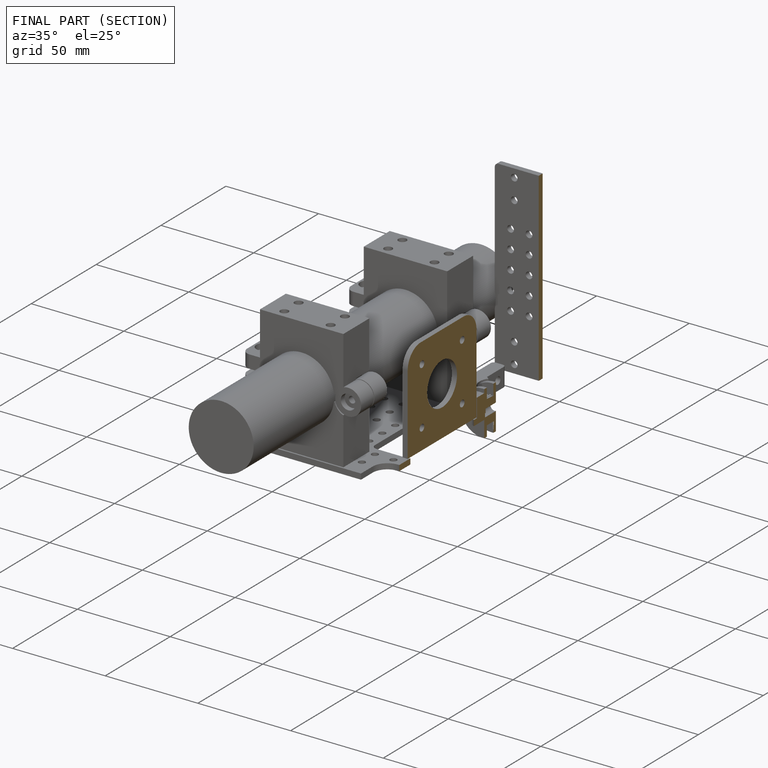
[diagram: finished part — half-section view (interior)]
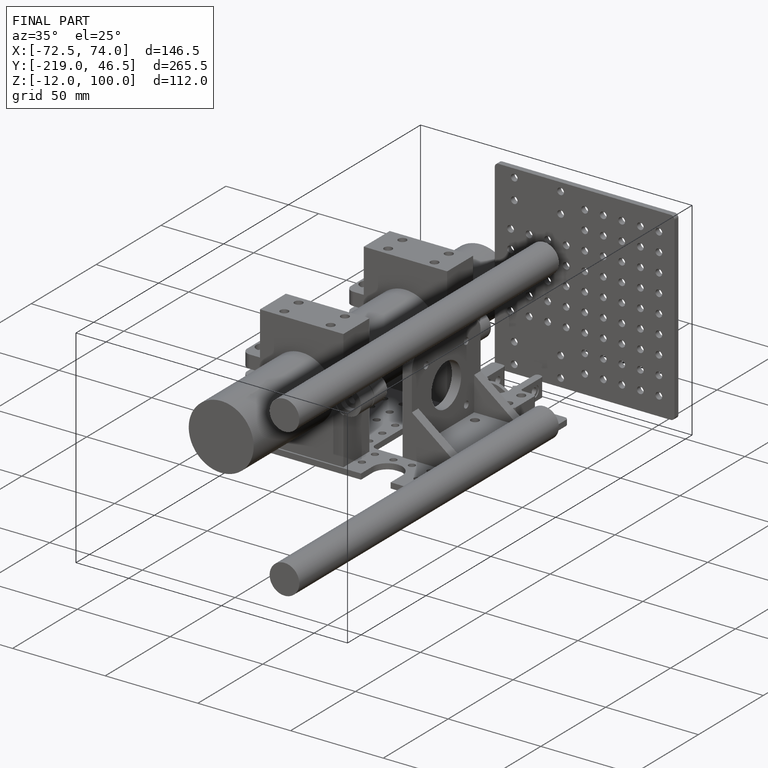
[diagram: finished part — iso view with bounding-box wireframe]
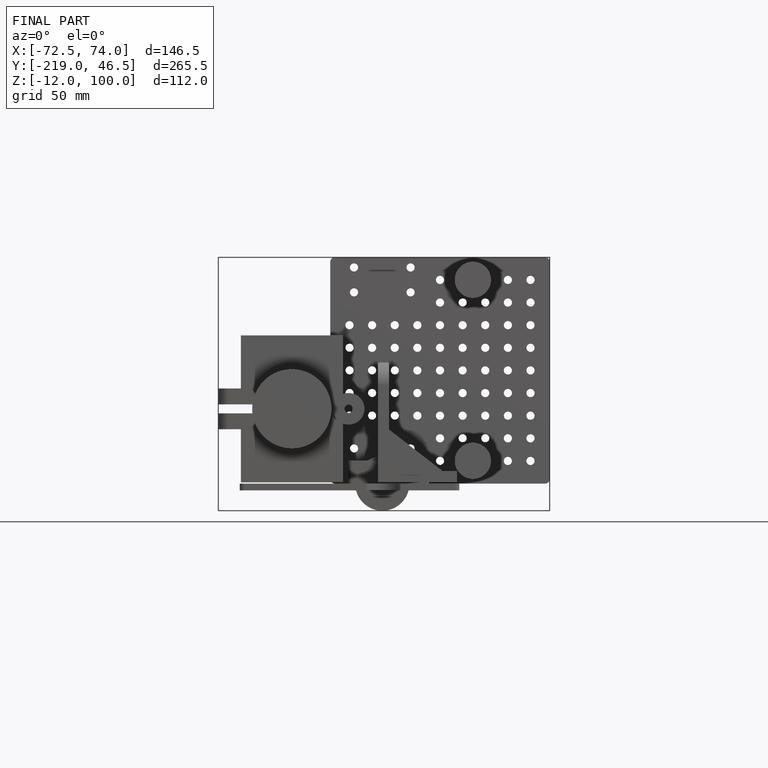
[diagram: finished part — front view with bounding-box wireframe]
